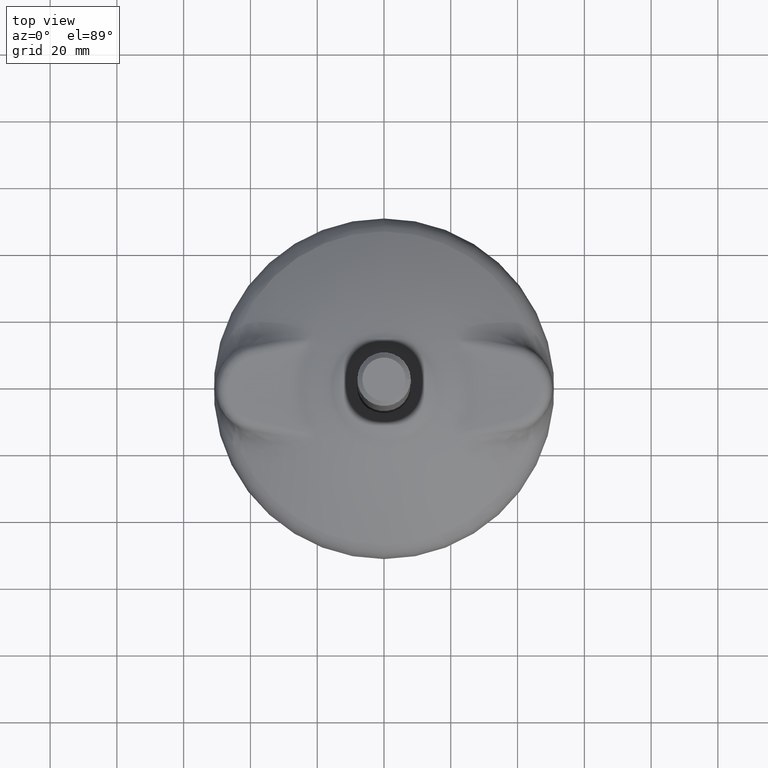
[diagram: clean part render]
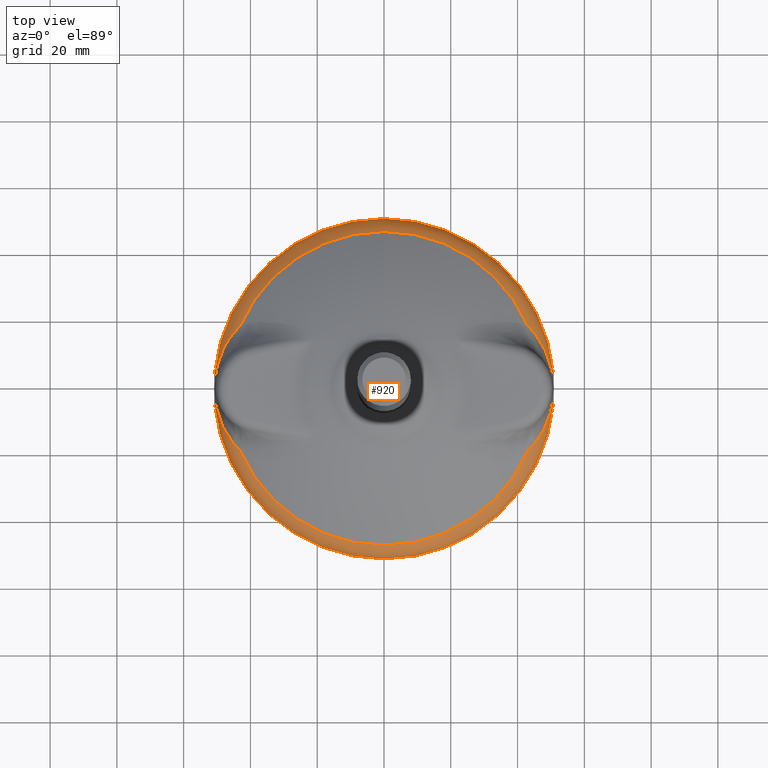
[diagram: same view with one face highlighted and labeled with its STEP entity id]
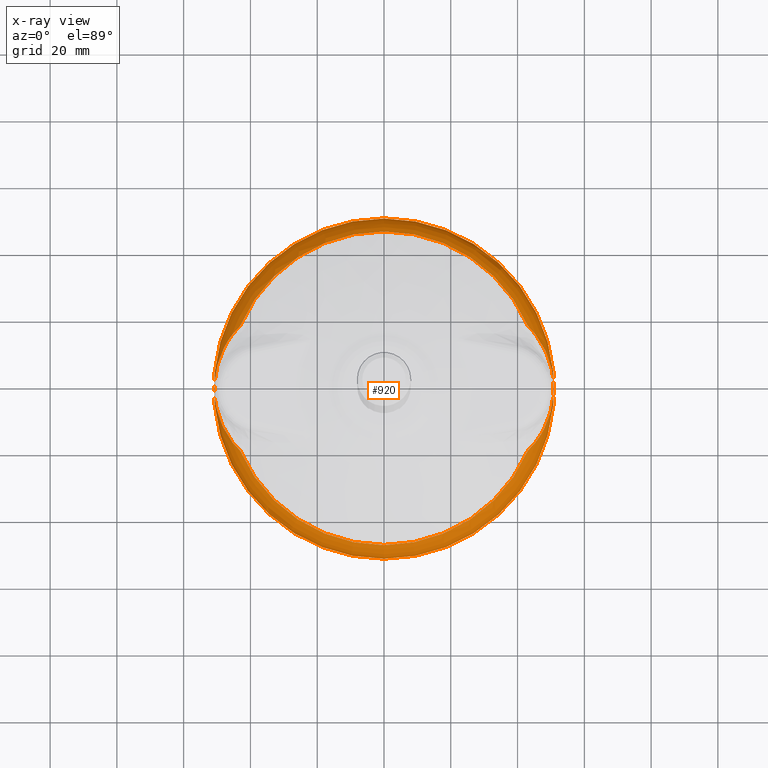
[diagram: x-ray of the same camera — body ghosted, the highlighted face saturated]
A machine part, top view. The second image highlights one B-rep face of the part: STEP entity #920.
The next image is the same camera in x-ray: the body ghosted, the highlighted face saturated — about 0% of this face is hidden behind the body in this view.
In plain terms, the highlighted toroidal blend (fillet) surface has major radius 42.954 mm and minor (blend) radius 8 mm.
Its self-contained STEP definition (entity closure, byte-faithful):
#37=TOROIDAL_SURFACE('',#1018,42.9539756463875,8.);
#59=B_SPLINE_CURVE_WITH_KNOTS('',3,(#2218,#2219,#2220,#2221,#2222,#2223,
#2224,#2225,#2226,#2227,#2228,#2229,#2230,#2231,#2232,#2233,#2234,#2235,
#2236,#2237,#2238,#2239,#2240,#2241,#2242,#2243,#2244,#2245,#2246,#2247,
#2248,#2249,#2250,#2251,#2252,#2253,#2254,#2255,#2256,#2257,#2258,#2259,
#2260,#2261,#2262,#2263,#2264,#2265,#2266,#2267,#2268,#2269,#2270,#2271,
#2272,#2273,#2274,#2275,#2276,#2277,#2278,#2279,#2280,#2281,#2282,#2283,
#2284,#2285,#2286,#2287,#2288,#2289,#2290,#2291,#2292,#2293,#2294,#2295,
#2296,#2297,#2298,#2299,#2300,#2301,#2302,#2303,#2304,#2305,#2306,#2307,
#2308,#2309,#2310,#2311,#2312,#2313,#2314,#2315,#2316,#2317,#2318,#2319,
#2320,#2321,#2322,#2323,#2324,#2325,#2326,#2327,#2328,#2329),
 .UNSPECIFIED.,.F.,.F.,(4,3,3,3,3,3,3,3,3,3,3,3,3,3,3,3,3,3,3,3,3,3,3,3,
3,3,3,3,3,3,3,3,3,3,3,3,3,4),(0.,0.018222802537615,0.0367503347024783,0.0558525532941425,
0.0625,0.0687576017251877,0.0945705334077094,0.102101619982043,0.125,0.134842332414032,
0.1597757440035,0.185974091750454,0.1875,0.198937669194426,0.236816819499432,
0.249999999999999,0.262062297847113,0.310398075632263,0.324602916335422,
0.374999999999999,0.386787666647561,0.437499999999999,0.448790401114532,
0.479746953367728,0.499999999999999,0.510646529469897,0.582979699784663,
0.633748616733842,0.706626075126714,0.75,0.756430156037369,0.8125,0.817755172613899,
0.848401071251382,0.875,0.878950178210174,0.959672150929535,1.),
 .UNSPECIFIED.);
#60=B_SPLINE_CURVE_WITH_KNOTS('',3,(#2331,#2332,#2333,#2334,#2335,#2336,
#2337,#2338,#2339,#2340,#2341,#2342,#2343),.UNSPECIFIED.,.F.,.F.,(4,3,3,
3,4),(0.,0.277875799666637,0.553106511569451,0.823726431966411,1.),
 .UNSPECIFIED.);
#61=B_SPLINE_CURVE_WITH_KNOTS('',3,(#2354,#2355,#2356,#2357,#2358,#2359,
#2360,#2361,#2362,#2363,#2364,#2365,#2366),.UNSPECIFIED.,.F.,.F.,(4,3,3,
3,4),(0.,0.271047231019559,0.545065131911834,0.823187332568414,1.),
 .UNSPECIFIED.);
#62=B_SPLINE_CURVE_WITH_KNOTS('',3,(#2368,#2369,#2370,#2371,#2372,#2373,
#2374,#2375,#2376,#2377,#2378,#2379,#2380,#2381,#2382,#2383,#2384,#2385,
#2386,#2387,#2388,#2389,#2390,#2391,#2392,#2393,#2394,#2395,#2396,#2397,
#2398,#2399,#2400,#2401,#2402,#2403,#2404,#2405,#2406,#2407,#2408,#2409,
#2410,#2411,#2412,#2413,#2414,#2415,#2416,#2417,#2418,#2419,#2420,#2421,
#2422,#2423,#2424,#2425,#2426,#2427,#2428,#2429,#2430,#2431,#2432,#2433,
#2434,#2435,#2436,#2437,#2438,#2439,#2440,#2441,#2442,#2443,#2444,#2445,
#2446,#2447,#2448,#2449,#2450,#2451,#2452,#2453,#2454,#2455,#2456,#2457,
#2458,#2459,#2460,#2461,#2462,#2463,#2464,#2465,#2466,#2467,#2468,#2469,
#2470,#2471,#2472,#2473),.UNSPECIFIED.,.F.,.F.,(4,3,3,3,3,3,3,3,3,3,3,3,
3,3,3,3,3,3,3,3,3,3,3,3,3,3,3,3,3,3,3,3,3,3,3,4),(0.,0.0806810860999628,
0.121104917920797,0.125000000000001,0.151667460845958,0.182330406107497,
0.187500000000001,0.243683798407299,0.250000000000001,0.322424447799351,
0.366313820985453,0.439038724511029,0.48922374077577,0.500000000000001,
0.562500000000001,0.612932018785015,0.625000000000001,0.675168725348555,
0.726112350710725,0.737673724635573,0.750000000000001,0.784530809777315,
0.800687394774762,0.812500000000001,0.838632208422804,0.862939732890658,
0.864764416845607,0.875,0.897564139640933,0.922735946449632,0.931015970200438,
0.9375,0.956502756556265,0.975098243612388,0.993238224314951,1.),
 .UNSPECIFIED.);
#63=B_SPLINE_CURVE_WITH_KNOTS('',3,(#2475,#2476,#2477,#2478,#2479,#2480,
#2481,#2482,#2483,#2484,#2485,#2486,#2487,#2488,#2489,#2490,#2491,#2492,
#2493,#2494,#2495,#2496,#2497,#2498,#2499,#2500,#2501,#2502,#2503,#2504,
#2505,#2506,#2507,#2508,#2509,#2510,#2511,#2512,#2513,#2514,#2515,#2516,
#2517,#2518,#2519,#2520,#2521,#2522,#2523,#2524,#2525,#2526,#2527,#2528,
#2529,#2530,#2531,#2532,#2533,#2534,#2535,#2536,#2537,#2538,#2539,#2540,
#2541,#2542,#2543,#2544,#2545,#2546,#2547,#2548,#2549,#2550,#2551,#2552,
#2553,#2554,#2555,#2556,#2557,#2558,#2559,#2560,#2561,#2562,#2563,#2564,
#2565,#2566,#2567,#2568,#2569,#2570,#2571,#2572,#2573,#2574,#2575,#2576,
#2577,#2578,#2579,#2580,#2581,#2582,#2583,#2584,#2585,#2586),
 .UNSPECIFIED.,.F.,.F.,(4,3,3,3,3,3,3,3,3,3,3,3,3,3,3,3,3,3,3,3,3,3,3,3,
3,3,3,3,3,3,3,3,3,3,3,3,3,4),(0.,0.0182228025467867,0.0367503347211714,
0.0558525533225901,0.0625,0.0687576017251878,0.0945705334320472,0.102101619982048,
0.125,0.134842332414048,0.159775744032231,0.185974091823288,0.1875,0.198937669194411,
0.236816819557266,0.250000000000001,0.262062297847087,0.310398075511154,
0.324602916335428,0.375000000000001,0.386787666647563,0.437500000000001,
0.448790401114524,0.479746953367743,0.500000000000001,0.510646529469891,
0.582979699794647,0.633748616733815,0.706626075146599,0.750000000000001,
0.756430156037374,0.812500000000001,0.817755172613906,0.848401071251367,
0.875000000000001,0.878950178210172,0.959672151761753,1.),.UNSPECIFIED.);
#64=B_SPLINE_CURVE_WITH_KNOTS('',3,(#2588,#2589,#2590,#2591,#2592,#2593,
#2594,#2595,#2596,#2597,#2598,#2599,#2600),.UNSPECIFIED.,.F.,.F.,(4,3,3,
3,4),(0.,0.277875799663428,0.55310651156872,0.82372643195857,1.),
 .UNSPECIFIED.);
#65=B_SPLINE_CURVE_WITH_KNOTS('',3,(#2604,#2605,#2606,#2607,#2608,#2609,
#2610,#2611,#2612,#2613,#2614,#2615,#2616),.UNSPECIFIED.,.F.,.F.,(4,3,3,
3,4),(0.,0.271047231022452,0.545065131913572,0.823187332572719,1.),
 .UNSPECIFIED.);
#66=B_SPLINE_CURVE_WITH_KNOTS('',3,(#2617,#2618,#2619,#2620,#2621,#2622,
#2623,#2624,#2625,#2626,#2627,#2628,#2629,#2630,#2631,#2632,#2633,#2634,
#2635,#2636,#2637,#2638,#2639,#2640,#2641,#2642,#2643,#2644,#2645,#2646,
#2647,#2648,#2649,#2650,#2651,#2652,#2653,#2654,#2655,#2656,#2657,#2658,
#2659,#2660,#2661,#2662,#2663,#2664,#2665,#2666,#2667,#2668,#2669,#2670,
#2671,#2672,#2673,#2674,#2675,#2676,#2677,#2678,#2679,#2680,#2681,#2682,
#2683,#2684,#2685,#2686,#2687,#2688,#2689,#2690,#2691,#2692,#2693,#2694,
#2695,#2696,#2697,#2698,#2699,#2700,#2701,#2702,#2703,#2704,#2705,#2706,
#2707,#2708,#2709,#2710,#2711,#2712,#2713,#2714,#2715,#2716,#2717,#2718,
#2719,#2720,#2721,#2722),.UNSPECIFIED.,.F.,.F.,(4,3,3,3,3,3,3,3,3,3,3,3,
3,3,3,3,3,3,3,3,3,3,3,3,3,3,3,3,3,3,3,3,3,3,3,4),(0.,0.080681086626353,
0.121104917920788,0.125,0.151667460845902,0.182330406107491,0.1875,0.243683798407294,
0.25,0.322424447801602,0.366313820985555,0.439038724524295,0.489223740775748,
0.5,0.5625,0.612932018785009,0.625000000000001,0.675168725348559,0.726112350690797,
0.737673724635557,0.75,0.784530809746806,0.800687394774753,0.8125,0.838632208422806,
0.862939732887436,0.864764416845613,0.875,0.897564139640971,0.922735946437646,
0.93101597020044,0.9375,0.956502756555314,0.975098243609896,0.993238224310252,
1.),.UNSPECIFIED.);
#155=FACE_OUTER_BOUND('',#222,.T.);
#222=EDGE_LOOP('',(#598,#599,#600,#601,#602,#603,#604,#605,#606,#607,#608,
#609,#610,#611,#612));
#290=CIRCLE('',#1019,46.9837143607323);
#291=CIRCLE('',#1020,8.);
#292=CIRCLE('',#1021,50.9491029525027);
#293=CIRCLE('',#1022,50.9491029525027);
#294=CIRCLE('',#1023,46.9837143607323);
#295=CIRCLE('',#1024,46.9837143607323);
#372=VERTEX_POINT('',#2216);
#373=VERTEX_POINT('',#2217);
#374=VERTEX_POINT('',#2330);
#375=VERTEX_POINT('',#2344);
#376=VERTEX_POINT('',#2346);
#377=VERTEX_POINT('',#2348);
#378=VERTEX_POINT('',#2351);
#379=VERTEX_POINT('',#2353);
#380=VERTEX_POINT('',#2367);
#381=VERTEX_POINT('',#2474);
#382=VERTEX_POINT('',#2587);
#383=VERTEX_POINT('',#2601);
#384=VERTEX_POINT('',#2603);
#459=EDGE_CURVE('',#372,#373,#59,.T.);
#460=EDGE_CURVE('',#373,#374,#60,.T.);
#461=EDGE_CURVE('',#375,#374,#290,.T.);
#462=EDGE_CURVE('',#375,#376,#291,.T.);
#463=EDGE_CURVE('',#376,#377,#292,.T.);
#464=EDGE_CURVE('',#377,#376,#293,.T.);
#465=EDGE_CURVE('',#378,#375,#294,.T.);
#466=EDGE_CURVE('',#378,#379,#61,.T.);
#467=EDGE_CURVE('',#379,#380,#62,.T.);
#468=EDGE_CURVE('',#380,#381,#63,.T.);
#469=EDGE_CURVE('',#381,#382,#64,.T.);
#470=EDGE_CURVE('',#383,#382,#295,.T.);
#471=EDGE_CURVE('',#383,#384,#65,.T.);
#472=EDGE_CURVE('',#384,#372,#66,.T.);
#598=ORIENTED_EDGE('',*,*,#459,.T.);
#599=ORIENTED_EDGE('',*,*,#460,.T.);
#600=ORIENTED_EDGE('',*,*,#461,.F.);
#601=ORIENTED_EDGE('',*,*,#462,.T.);
#602=ORIENTED_EDGE('',*,*,#463,.T.);
#603=ORIENTED_EDGE('',*,*,#464,.T.);
#604=ORIENTED_EDGE('',*,*,#462,.F.);
#605=ORIENTED_EDGE('',*,*,#465,.F.);
#606=ORIENTED_EDGE('',*,*,#466,.T.);
#607=ORIENTED_EDGE('',*,*,#467,.T.);
#608=ORIENTED_EDGE('',*,*,#468,.T.);
#609=ORIENTED_EDGE('',*,*,#469,.T.);
#610=ORIENTED_EDGE('',*,*,#470,.F.);
#611=ORIENTED_EDGE('',*,*,#471,.T.);
#612=ORIENTED_EDGE('',*,*,#472,.T.);
#920=ADVANCED_FACE('',(#155),#37,.T.);
#1018=AXIS2_PLACEMENT_3D('',#2215,#1162,#1163);
#1019=AXIS2_PLACEMENT_3D('',#2345,#1164,#1165);
#1020=AXIS2_PLACEMENT_3D('',#2347,#1166,#1167);
#1021=AXIS2_PLACEMENT_3D('',#2349,#1168,#1169);
#1022=AXIS2_PLACEMENT_3D('',#2350,#1170,#1171);
#1023=AXIS2_PLACEMENT_3D('',#2352,#1172,#1173);
#1024=AXIS2_PLACEMENT_3D('',#2602,#1174,#1175);
#1162=DIRECTION('center_axis',(0.,1.171453E-15,1.));
#1163=DIRECTION('ref_axis',(0.,-1.,1.17223431473434E-15));
#1164=DIRECTION('center_axis',(0.,1.171453E-15,1.));
#1165=DIRECTION('ref_axis',(0.,-1.,1.171453E-15));
#1166=DIRECTION('center_axis',(-1.,-1.22464679914735E-16,1.43461616680156E-31));
#1167=DIRECTION('ref_axis',(-1.22464679914735E-16,1.,-1.17114487763886E-15));
#1168=DIRECTION('center_axis',(0.,1.171453E-15,1.));
#1169=DIRECTION('ref_axis',(0.,-1.,1.171453E-15));
#1170=DIRECTION('center_axis',(0.,1.171453E-15,1.));
#1171=DIRECTION('ref_axis',(0.,-1.,1.171453E-15));
#1172=DIRECTION('center_axis',(0.,1.171453E-15,1.));
#1173=DIRECTION('ref_axis',(0.,-1.,1.171453E-15));
#1174=DIRECTION('center_axis',(0.,1.171453E-15,1.));
#1175=DIRECTION('ref_axis',(0.,-1.,1.171453E-15));
#2215=CARTESIAN_POINT('Origin',(0.,1.581797E-15,1.35028559827396));
#2216=CARTESIAN_POINT('',(-50.8753258163308,2.803829E-13,2.4693081561962));
#2217=CARTESIAN_POINT('',(-45.3902886219601,16.1682992003729,7.40400009036721));
#2218=CARTESIAN_POINT('Ctrl Pts',(-50.8753258163309,2.79212417075847E-13,
2.46930815619604));
#2219=CARTESIAN_POINT('Ctrl Pts',(-50.8753258162163,0.110607063480051,2.46930815700715));
#2220=CARTESIAN_POINT('Ctrl Pts',(-50.87457932247,0.22085541299961,2.47215559616056));
#2221=CARTESIAN_POINT('Ctrl Pts',(-50.8730941625265,0.330752815448566,2.47764053878972));
#2222=CARTESIAN_POINT('Ctrl Pts',(-50.8715841670926,0.4424879700443,2.48321720301436));
#2223=CARTESIAN_POINT('Ctrl Pts',(-50.8693105987866,0.553860409802232,2.49152017495504));
#2224=CARTESIAN_POINT('Ctrl Pts',(-50.8662903397049,0.664900840769425,2.50227986785055));
#2225=CARTESIAN_POINT('Ctrl Pts',(-50.8631763983192,0.779385520432836,2.51337330457166));
#2226=CARTESIAN_POINT('Ctrl Pts',(-50.8592687186123,0.893517328943798,2.52707811978757));
#2227=CARTESIAN_POINT('Ctrl Pts',(-50.8545949823728,1.0073528322612,2.54304904741494));
#2228=CARTESIAN_POINT('Ctrl Pts',(-50.8529685528343,1.04696684033601,2.54860682541525));
#2229=CARTESIAN_POINT('Ctrl Pts',(-50.8512494341136,1.08654516004333,2.55443860618742));
#2230=CARTESIAN_POINT('Ctrl Pts',(-50.8494390430488,1.12609077373146,2.56052853637063));
#2231=CARTESIAN_POINT('Ctrl Pts',(-50.8477348238573,1.16331720237216,2.5662613175883));
#2232=CARTESIAN_POINT('Ctrl Pts',(-50.8459504829558,1.2004990694823,2.5722201905387));
#2233=CARTESIAN_POINT('Ctrl Pts',(-50.8440871878396,1.23764505613852,2.57839190145265));
#2234=CARTESIAN_POINT('Ctrl Pts',(-50.8364009988412,1.39087417776469,2.60385052908387));
#2235=CARTESIAN_POINT('Ctrl Pts',(-50.8273476532781,1.54360911913719,2.63290110775226));
#2236=CARTESIAN_POINT('Ctrl Pts',(-50.8169539850645,1.69610558866171,2.66472881523597));
#2237=CARTESIAN_POINT('Ctrl Pts',(-50.8139215664263,1.74059740107552,2.67401475080774));
#2238=CARTESIAN_POINT('Ctrl Pts',(-50.8107750285907,1.78506891545836,2.68353675667348));
#2239=CARTESIAN_POINT('Ctrl Pts',(-50.8075149736743,1.8295264970545,2.69327371484963));
#2240=CARTESIAN_POINT('Ctrl Pts',(-50.7976027285262,1.96470043085801,2.72287908006961));
#2241=CARTESIAN_POINT('Ctrl Pts',(-50.7867017782433,2.09896831495645,2.75429451485324));
#2242=CARTESIAN_POINT('Ctrl Pts',(-50.7748078058765,2.23281726533295,2.78716920398462));
#2243=CARTESIAN_POINT('Ctrl Pts',(-50.7696954603889,2.29034910216341,2.8012996192448));
#2244=CARTESIAN_POINT('Ctrl Pts',(-50.7644013762381,2.34777699644241,2.81569595633637));
#2245=CARTESIAN_POINT('Ctrl Pts',(-50.7589276582753,2.40512148608375,2.83032224755346));
#2246=CARTESIAN_POINT('Ctrl Pts',(-50.7450611826117,2.55039129637558,2.86737477977876));
#2247=CARTESIAN_POINT('Ctrl Pts',(-50.7300441234678,2.69515702942168,2.90587191649146));
#2248=CARTESIAN_POINT('Ctrl Pts',(-50.7138852525056,2.83947272023835,2.94550660831346));
#2249=CARTESIAN_POINT('Ctrl Pts',(-50.6969066004207,2.99110991757055,2.98715207008551));
#2250=CARTESIAN_POINT('Ctrl Pts',(-50.6786671885925,3.1422504986276,3.03005322638088));
#2251=CARTESIAN_POINT('Ctrl Pts',(-50.6591939994391,3.29299673133636,3.07381677369676));
#2252=CARTESIAN_POINT('Ctrl Pts',(-50.6580597943259,3.3017768621408,3.07636575726334));
#2253=CARTESIAN_POINT('Ctrl Pts',(-50.6569214086251,3.31055566505588,3.07891765710393));
#2254=CARTESIAN_POINT('Ctrl Pts',(-50.6557788494881,3.3193331638458,3.08147239216252));
#2255=CARTESIAN_POINT('Ctrl Pts',(-50.647214629819,3.38512619402532,3.10062178367302));
#2256=CARTESIAN_POINT('Ctrl Pts',(-50.6384154546783,3.45083360254808,3.11993621156064));
#2257=CARTESIAN_POINT('Ctrl Pts',(-50.6293823112034,3.51647867762683,3.13938712054669));
#2258=CARTESIAN_POINT('Ctrl Pts',(-50.5994664434166,3.73388133400922,3.2038044325468));
#2259=CARTESIAN_POINT('Ctrl Pts',(-50.5669425548929,3.95069357194471,3.26984880011236));
#2260=CARTESIAN_POINT('Ctrl Pts',(-50.5318723842772,4.16675564378585,3.33693199739761));
#2261=CARTESIAN_POINT('Ctrl Pts',(-50.5196668203802,4.24195229601993,3.36027913932781));
#2262=CARTESIAN_POINT('Ctrl Pts',(-50.5071530309862,4.31705827665232,3.3837517316342));
#2263=CARTESIAN_POINT('Ctrl Pts',(-50.4943342551675,4.39206747523708,3.40732381705424));
#2264=CARTESIAN_POINT('Ctrl Pts',(-50.4826053789715,4.46069911496649,3.42889171678843));
#2265=CARTESIAN_POINT('Ctrl Pts',(-50.47062079107,4.52924838336984,3.4505448057103));
#2266=CARTESIAN_POINT('Ctrl Pts',(-50.4583827672784,4.59771072218007,3.47226429089651));
#2267=CARTESIAN_POINT('Ctrl Pts',(-50.4093428243075,4.87205151838042,3.55929813990896));
#2268=CARTESIAN_POINT('Ctrl Pts',(-50.356234303129,5.14501326697966,3.64744851954726));
#2269=CARTESIAN_POINT('Ctrl Pts',(-50.29905285438,5.41681574715197,3.73625815069382));
#2270=CARTESIAN_POINT('Ctrl Pts',(-50.2822484621084,5.49669262325671,3.76235738238407));
#2271=CARTESIAN_POINT('Ctrl Pts',(-50.2650925266438,5.57646962369032,3.78851342033886));
#2272=CARTESIAN_POINT('Ctrl Pts',(-50.2475854715019,5.65615289532333,3.81471436393785));
#2273=CARTESIAN_POINT('Ctrl Pts',(-50.1854725241521,5.93885965642506,3.90767219248679));
#2274=CARTESIAN_POINT('Ctrl Pts',(-50.1189358735009,6.22036604798966,4.0012109572267));
#2275=CARTESIAN_POINT('Ctrl Pts',(-50.0479758520503,6.50068655446503,4.09501065013845));
#2276=CARTESIAN_POINT('Ctrl Pts',(-50.0313786004369,6.56625234606519,4.11695000518221));
#2277=CARTESIAN_POINT('Ctrl Pts',(-50.0145389268475,6.63175499554447,4.1389046542049));
#2278=CARTESIAN_POINT('Ctrl Pts',(-49.9974566048136,6.69719662760427,4.16087105638765));
#2279=CARTESIAN_POINT('Ctrl Pts',(-49.9239658593319,6.97873647423969,4.25537385692925));
#2280=CARTESIAN_POINT('Ctrl Pts',(-49.8459820948975,7.25913842180201,4.35010060300977));
#2281=CARTESIAN_POINT('Ctrl Pts',(-49.7634639917238,7.53844802075987,4.4448677797871));
#2282=CARTESIAN_POINT('Ctrl Pts',(-49.745092474926,7.60063244807576,4.46596638376715));
#2283=CARTESIAN_POINT('Ctrl Pts',(-49.7264970974871,7.66275971469967,4.48706620930678));
#2284=CARTESIAN_POINT('Ctrl Pts',(-49.7076756537454,7.72483657135678,4.50816740345873));
#2285=CARTESIAN_POINT('Ctrl Pts',(-49.6560701349726,7.89504181360864,4.56602364902019));
#2286=CARTESIAN_POINT('Ctrl Pts',(-49.6027333488479,8.06495285647541,4.623922229906));
#2287=CARTESIAN_POINT('Ctrl Pts',(-49.5478334921058,8.23402996434397,4.68164757635487));
#2288=CARTESIAN_POINT('Ctrl Pts',(-49.5119157532824,8.34464714555019,4.71941386647434));
#2289=CARTESIAN_POINT('Ctrl Pts',(-49.4753125695062,8.45496369149038,4.75712515107837));
#2290=CARTESIAN_POINT('Ctrl Pts',(-49.4380130570635,8.5650140996239,4.79478591911235));
#2291=CARTESIAN_POINT('Ctrl Pts',(-49.4184056189509,8.62286489780953,4.81458326042168));
#2292=CARTESIAN_POINT('Ctrl Pts',(-49.398607996671,8.6806354247502,4.83436436223574));
#2293=CARTESIAN_POINT('Ctrl Pts',(-49.3786201627011,8.73832627685857,4.85412836838103));
#2294=CARTESIAN_POINT('Ctrl Pts',(-49.2428216000936,9.13028144337157,4.98840623110155));
#2295=CARTESIAN_POINT('Ctrl Pts',(-49.0982628381649,9.51858448574543,5.12188513199418));
#2296=CARTESIAN_POINT('Ctrl Pts',(-48.9448513540605,9.90327954481626,5.25436333466636));
#2297=CARTESIAN_POINT('Ctrl Pts',(-48.8371755137557,10.1732877778266,5.3473466069296));
#2298=CARTESIAN_POINT('Ctrl Pts',(-48.7251394282304,10.441519291842,5.43983696378242));
#2299=CARTESIAN_POINT('Ctrl Pts',(-48.6087238645811,10.7079977451092,5.53176588523455));
#2300=CARTESIAN_POINT('Ctrl Pts',(-48.4416123541145,11.0905206263835,5.66372745839428));
#2301=CARTESIAN_POINT('Ctrl Pts',(-48.2654786363546,11.46941895834,5.79454016392908));
#2302=CARTESIAN_POINT('Ctrl Pts',(-48.0801068568672,11.8446349802538,5.92403085447858));
#2303=CARTESIAN_POINT('Ctrl Pts',(-47.9697805390398,12.0679494577979,6.00109884789578));
#2304=CARTESIAN_POINT('Ctrl Pts',(-47.8561827805757,12.2899600408784,6.07769867438771));
#2305=CARTESIAN_POINT('Ctrl Pts',(-47.739275999132,12.5106582124244,6.15379496881591));
#2306=CARTESIAN_POINT('Ctrl Pts',(-47.7219446451283,12.5433765722304,6.16507619477064));
#2307=CARTESIAN_POINT('Ctrl Pts',(-47.7045404932922,12.5760661961864,6.17634642851798));
#2308=CARTESIAN_POINT('Ctrl Pts',(-47.6870634298822,12.608727065066,6.18760555552343));
#2309=CARTESIAN_POINT('Ctrl Pts',(-47.5346664720745,12.8935241696959,6.28578318771182));
#2310=CARTESIAN_POINT('Ctrl Pts',(-47.3767111081999,13.1761275104673,6.38311585242439));
#2311=CARTESIAN_POINT('Ctrl Pts',(-47.213048375008,13.4564975928413,6.47952078055328));
#2312=CARTESIAN_POINT('Ctrl Pts',(-47.197709008022,13.4827754112641,6.48855637798575));
#2313=CARTESIAN_POINT('Ctrl Pts',(-47.1823186149607,13.509035156747,6.49758436435568));
#2314=CARTESIAN_POINT('Ctrl Pts',(-47.1668764291442,13.5352778603835,6.50660503841123));
#2315=CARTESIAN_POINT('Ctrl Pts',(-47.076824266058,13.6883139820689,6.55920971632742));
#2316=CARTESIAN_POINT('Ctrl Pts',(-46.9849781841483,13.8408125138142,6.61157990775505));
#2317=CARTESIAN_POINT('Ctrl Pts',(-46.8917229840399,13.9921048239597,6.66347491636624));
#2318=CARTESIAN_POINT('Ctrl Pts',(-46.8107826777215,14.1234181009949,6.70851688602053));
#2319=CARTESIAN_POINT('Ctrl Pts',(-46.7286905631571,14.253978587648,6.75325452336524));
#2320=CARTESIAN_POINT('Ctrl Pts',(-46.6453537741147,14.3839144136904,6.79772426580648));
#2321=CARTESIAN_POINT('Ctrl Pts',(-46.6329775174883,14.4032110430248,6.80432841927685));
#2322=CARTESIAN_POINT('Ctrl Pts',(-46.6205749859043,14.4224920252269,6.810926023635));
#2323=CARTESIAN_POINT('Ctrl Pts',(-46.6081461502561,14.4417573520859,6.81751705161709));
#2324=CARTESIAN_POINT('Ctrl Pts',(-46.354162638944,14.8354447014663,6.95220484357356));
#2325=CARTESIAN_POINT('Ctrl Pts',(-46.0892257821214,15.2226144602278,7.08416014437246));
#2326=CARTESIAN_POINT('Ctrl Pts',(-45.8129343164146,15.6030877488243,7.21308263517687));
#2327=CARTESIAN_POINT('Ctrl Pts',(-45.6749020043547,15.793168204504,7.27749095642819));
#2328=CARTESIAN_POINT('Ctrl Pts',(-45.5340360468087,15.9815780203688,7.34114240306936));
#2329=CARTESIAN_POINT('Ctrl Pts',(-45.3902886219601,16.1682992003729,7.40400009036722));
#2330=CARTESIAN_POINT('',(-43.1479021368188,18.5937612204306,8.26123386129241));
#2331=CARTESIAN_POINT('Ctrl Pts',(-45.3902886219601,16.1682992003729,7.40400009036721));
#2332=CARTESIAN_POINT('Ctrl Pts',(-45.2032649082044,16.4112342550911,7.48578157708889));
#2333=CARTESIAN_POINT('Ctrl Pts',(-45.0106625578263,16.6490105442405,7.5674382432531));
#2334=CARTESIAN_POINT('Ctrl Pts',(-44.8123375053262,16.8817028195825,7.64854579554296));
#2335=CARTESIAN_POINT('Ctrl Pts',(-44.6159003004554,17.1121801071818,7.72888128853737));
#2336=CARTESIAN_POINT('Ctrl Pts',(-44.4138482970492,17.3376695527692,7.80867811655563));
#2337=CARTESIAN_POINT('Ctrl Pts',(-44.2060500195009,17.5582273957264,7.8874768241038));
#2338=CARTESIAN_POINT('Ctrl Pts',(-44.0017328742957,17.7750903522306,7.96495545945174));
#2339=CARTESIAN_POINT('Ctrl Pts',(-43.7918598841924,17.9871853429446,8.04146908180662));
#2340=CARTESIAN_POINT('Ctrl Pts',(-43.5763217899797,18.1945526504998,8.11653528801766));
#2341=CARTESIAN_POINT('Ctrl Pts',(-43.4359268447063,18.3296253943786,8.16543112683158));
#2342=CARTESIAN_POINT('Ctrl Pts',(-43.2931286299311,18.4626920008113,8.21371192422786));
#2343=CARTESIAN_POINT('Ctrl Pts',(-43.1479021368187,18.5937612204306,8.26123386129196));
#2344=CARTESIAN_POINT('',(-5.75384554039243E-15,46.9837143607323,8.26123386129238));
#2345=CARTESIAN_POINT('Origin',(0.,1.93553E-14,8.26123386129243));
#2346=CARTESIAN_POINT('',(-6.23946558502113E-15,50.9491029525027,1.62946181325611));
#2347=CARTESIAN_POINT('Origin',(-5.26034487860018E-15,42.9539756463875,
1.35028559827391));
#2348=CARTESIAN_POINT('',(0.,-50.9491029525027,1.62946181325623));
#2349=CARTESIAN_POINT('Origin',(0.,3.817677E-15,1.62946181325617));
#2350=CARTESIAN_POINT('Origin',(0.,3.817677E-15,1.62946181325617));
#2351=CARTESIAN_POINT('',(43.147902136819,18.5937612204301,8.26123386129241));
#2352=CARTESIAN_POINT('Origin',(0.,1.93553E-14,8.26123386129243));
#2353=CARTESIAN_POINT('',(45.3902886219603,16.1682992003723,7.4040000903672));
#2354=CARTESIAN_POINT('Ctrl Pts',(43.1479021368189,18.59376122043,8.26123386129195));
#2355=CARTESIAN_POINT('Ctrl Pts',(43.3712098015352,18.3922225016874,8.1881617064726));
#2356=CARTESIAN_POINT('Ctrl Pts',(43.5887749171552,18.1859616845277,8.11329755737715));
#2357=CARTESIAN_POINT('Ctrl Pts',(43.8006927752545,17.9749452717999,8.03715616061235));
#2358=CARTESIAN_POINT('Ctrl Pts',(44.0149332469963,17.761616125245,7.96018025632433));
#2359=CARTESIAN_POINT('Ctrl Pts',(44.2234025158967,17.5434268078087,7.88189899279334));
#2360=CARTESIAN_POINT('Ctrl Pts',(44.426220713816,17.3203309768616,7.80279629172627));
#2361=CARTESIAN_POINT('Ctrl Pts',(44.6320767668506,17.0938935679979,7.72250877318456));
#2362=CARTESIAN_POINT('Ctrl Pts',(44.8321117297822,16.8624017703644,7.64137504987025));
#2363=CARTESIAN_POINT('Ctrl Pts',(45.0264653884418,16.6257916935631,7.55985147076806));
#2364=CARTESIAN_POINT('Ctrl Pts',(45.1500232659919,16.4753698332381,7.5080238876208));
#2365=CARTESIAN_POINT('Ctrl Pts',(45.2712852336056,16.3228790345604,7.45603773751435));
#2366=CARTESIAN_POINT('Ctrl Pts',(45.3902886219603,16.1682992003723,7.40400009036722));
#2367=CARTESIAN_POINT('',(50.8753258163309,-5.135288E-14,2.46930815619605));
#2368=CARTESIAN_POINT('Ctrl Pts',(45.3902886219603,16.1682992003723,7.4040000903672));
#2369=CARTESIAN_POINT('Ctrl Pts',(45.6782656786934,15.7942304759805,7.27807385690588));
#2370=CARTESIAN_POINT('Ctrl Pts',(45.9546680718156,15.4133931075555,7.14896543257678));
#2371=CARTESIAN_POINT('Ctrl Pts',(46.2198883889244,15.0259439163735,7.01697321463073));
#2372=CARTESIAN_POINT('Ctrl Pts',(46.3527723399534,14.8318193488874,6.9508408473334));
#2373=CARTESIAN_POINT('Ctrl Pts',(46.4828496013306,14.6360357087931,6.88398465192394));
#2374=CARTESIAN_POINT('Ctrl Pts',(46.6101717342908,14.4386170945499,6.81644269978518));
#2375=CARTESIAN_POINT('Ctrl Pts',(46.6224399962551,14.4195946102429,6.80993462186381));
#2376=CARTESIAN_POINT('Ctrl Pts',(46.6346826022783,14.4005568926205,6.80342014405005));
#2377=CARTESIAN_POINT('Ctrl Pts',(46.6468995805474,14.381503949665,6.79689929261033));
#2378=CARTESIAN_POINT('Ctrl Pts',(46.730542436596,14.2510590450556,6.7522546492075));
#2379=CARTESIAN_POINT('Ctrl Pts',(46.8129315194232,14.1199839015947,6.70733982983232));
#2380=CARTESIAN_POINT('Ctrl Pts',(46.8941548704487,13.9881586698541,6.66212132632116));
#2381=CARTESIAN_POINT('Ctrl Pts',(46.9875476077941,13.8365825641161,6.6101279061009));
#2382=CARTESIAN_POINT('Ctrl Pts',(47.079529253068,13.683791767217,6.55765628453577));
#2383=CARTESIAN_POINT('Ctrl Pts',(47.1697363674864,13.5304164267166,6.50493395443748));
#2384=CARTESIAN_POINT('Ctrl Pts',(47.184944761324,13.5045582380544,6.49604527680557));
#2385=CARTESIAN_POINT('Ctrl Pts',(47.2001014492015,13.4786859589272,6.48715034792935));
#2386=CARTESIAN_POINT('Ctrl Pts',(47.2152071530494,13.4527986783694,6.47824890844709));
#2387=CARTESIAN_POINT('Ctrl Pts',(47.3793778475833,13.1714524483917,6.38150694151399));
#2388=CARTESIAN_POINT('Ctrl Pts',(47.5377276770702,12.8879869824101,6.28387565502356));
#2389=CARTESIAN_POINT('Ctrl Pts',(47.69042404649,12.6024447951482,6.18543983688551));
#2390=CARTESIAN_POINT('Ctrl Pts',(47.7075902239125,12.570344046016,6.1743736489643));
#2391=CARTESIAN_POINT('Ctrl Pts',(47.7246851466322,12.5382171346855,6.16329729807213));
#2392=CARTESIAN_POINT('Ctrl Pts',(47.7417089405577,12.5060640881292,6.15221089543004));
#2393=CARTESIAN_POINT('Ctrl Pts',(47.9369115249605,12.1373825937647,6.02508914707375));
#2394=CARTESIAN_POINT('Ctrl Pts',(48.1227671149964,11.7652530025143,5.89663698632211));
#2395=CARTESIAN_POINT('Ctrl Pts',(48.2994936404215,11.3897225715613,5.76702178661228));
#2396=CARTESIAN_POINT('Ctrl Pts',(48.4065902999329,11.1621503120876,5.68847469314439));
#2397=CARTESIAN_POINT('Ctrl Pts',(48.5103353969585,10.9333294751464,5.60950062002869));
#2398=CARTESIAN_POINT('Ctrl Pts',(48.610785962323,10.703274031424,5.53013790383534));
#2399=CARTESIAN_POINT('Ctrl Pts',(48.7772330346985,10.3220710491142,5.39863349947268));
#2400=CARTESIAN_POINT('Ctrl Pts',(48.9346269593494,9.9374876194546,5.2660536476363));
#2401=CARTESIAN_POINT('Ctrl Pts',(49.0830598140507,9.54947052388027,5.13260200184905));
#2402=CARTESIAN_POINT('Ctrl Pts',(49.185488347693,9.28171294279876,5.04051149791274));
#2403=CARTESIAN_POINT('Ctrl Pts',(49.2836506684443,9.01232074625034,4.94800596011341));
#2404=CARTESIAN_POINT('Ctrl Pts',(49.3775894747659,8.74128377761508,4.85515334694099));
#2405=CARTESIAN_POINT('Ctrl Pts',(49.3977610120789,8.68308384363568,4.835215048547));
#2406=CARTESIAN_POINT('Ctrl Pts',(49.4177378438479,8.62480889779597,4.81526018386286));
#2407=CARTESIAN_POINT('Ctrl Pts',(49.4375198684076,8.56645783308837,4.79528994778484));
#2408=CARTESIAN_POINT('Ctrl Pts',(49.5522513823079,8.22803413073117,4.67946684730952));
#2409=CARTESIAN_POINT('Ctrl Pts',(49.6604169133795,7.88704253711166,4.56315066818992));
#2410=CARTESIAN_POINT('Ctrl Pts',(49.7620058936505,7.54341053233032,4.44655342906142));
#2411=CARTESIAN_POINT('Ctrl Pts',(49.8439792914325,7.2661296408061,4.35246968259728));
#2412=CARTESIAN_POINT('Ctrl Pts',(49.9216338463202,6.9872536875823,4.25825504932372));
#2413=CARTESIAN_POINT('Ctrl Pts',(49.99506431886,6.70635183457992,4.16394645539571));
#2414=CARTESIAN_POINT('Ctrl Pts',(50.0126356472456,6.63913425402384,4.14137915852055));
#2415=CARTESIAN_POINT('Ctrl Pts',(50.0299452920541,6.57187176905686,4.11883136498067));
#2416=CARTESIAN_POINT('Ctrl Pts',(50.0469945088809,6.50456081578067,4.09630655271259));
#2417=CARTESIAN_POINT('Ctrl Pts',(50.1178711087988,6.22473731691171,4.00266693726457));
#2418=CARTESIAN_POINT('Ctrl Pts',(50.1842980912264,5.94389531609982,3.90934151928844));
#2419=CARTESIAN_POINT('Ctrl Pts',(50.246236607655,5.66228966455679,3.81673185011885));
#2420=CARTESIAN_POINT('Ctrl Pts',(50.3091318188549,5.37633436646209,3.7226917432931));
#2421=CARTESIAN_POINT('Ctrl Pts',(50.3674304742042,5.08948978214681,3.62933616260856));
#2422=CARTESIAN_POINT('Ctrl Pts',(50.4211585822691,4.80150134403279,3.53719686052852));
#2423=CARTESIAN_POINT('Ctrl Pts',(50.4333518791379,4.73614396132988,3.51628635569207));
#2424=CARTESIAN_POINT('Ctrl Pts',(50.4453099215349,4.67072779308073,3.49543841085186));
#2425=CARTESIAN_POINT('Ctrl Pts',(50.4570332689812,4.60525010335763,3.47465908303914));
#2426=CARTESIAN_POINT('Ctrl Pts',(50.4695322340486,4.53544040435475,3.45250499320758));
#2427=CARTESIAN_POINT('Ctrl Pts',(50.4817646268728,4.46556348354688,3.43042646682503));
#2428=CARTESIAN_POINT('Ctrl Pts',(50.4937302532171,4.39560766462542,3.40843837409745));
#2429=CARTESIAN_POINT('Ctrl Pts',(50.527250741357,4.19963353581728,3.34684096329049));
#2430=CARTESIAN_POINT('Ctrl Pts',(50.5586720732671,4.00309280755024,3.2859514251386));
#2431=CARTESIAN_POINT('Ctrl Pts',(50.5879739245247,3.80587277375512,3.22615655822958));
#2432=CARTESIAN_POINT('Ctrl Pts',(50.6016839375096,3.71359569540802,3.19817919957924));
#2433=CARTESIAN_POINT('Ctrl Pts',(50.6149302887577,3.62117038630822,3.17044109357793));
#2434=CARTESIAN_POINT('Ctrl Pts',(50.6277126314285,3.52858808656156,3.14297959105721));
#2435=CARTESIAN_POINT('Ctrl Pts',(50.6370582182495,3.46089815345225,3.12290159262993));
#2436=CARTESIAN_POINT('Ctrl Pts',(50.6461565593643,3.39313233855182,3.10296427284463));
#2437=CARTESIAN_POINT('Ctrl Pts',(50.6550058674253,3.32526741336237,3.08320003413277));
#2438=CARTESIAN_POINT('Ctrl Pts',(50.6745825787634,3.17513453955234,3.03947697766146));
#2439=CARTESIAN_POINT('Ctrl Pts',(50.6929461871723,3.02454700644136,2.99656199756095));
#2440=CARTESIAN_POINT('Ctrl Pts',(50.7100658830254,2.87339142610479,2.95484629142206));
#2441=CARTESIAN_POINT('Ctrl Pts',(50.7259901944766,2.73279029863645,2.91604338845806));
#2442=CARTESIAN_POINT('Ctrl Pts',(50.7408384290341,2.59169759597404,2.87827818857741));
#2443=CARTESIAN_POINT('Ctrl Pts',(50.7545998360521,2.45005793091032,2.84183520603702));
#2444=CARTESIAN_POINT('Ctrl Pts',(50.7556328585064,2.43942551852428,2.83909955413631));
#2445=CARTESIAN_POINT('Ctrl Pts',(50.7566597629531,2.42879004219565,2.83637133763081));
#2446=CARTESIAN_POINT('Ctrl Pts',(50.7576805478876,2.4181514875467,2.8336506692719));
#2447=CARTESIAN_POINT('Ctrl Pts',(50.7634066513324,2.35847440732881,2.81838905251489));
#2448=CARTESIAN_POINT('Ctrl Pts',(50.7689396241475,2.29869420967078,2.80337056581916));
#2449=CARTESIAN_POINT('Ctrl Pts',(50.774276910645,2.23878529183893,2.78863572429716));
#2450=CARTESIAN_POINT('Ctrl Pts',(50.786042852655,2.106717273114,2.75615305900351));
#2451=CARTESIAN_POINT('Ctrl Pts',(50.7968452468722,1.97420655397383,2.72507773056062));
#2452=CARTESIAN_POINT('Ctrl Pts',(50.8066926160218,1.84070544998879,2.69572785646965));
#2453=CARTESIAN_POINT('Ctrl Pts',(50.8176780148782,1.69177604023797,2.66298610906718));
#2454=CARTESIAN_POINT('Ctrl Pts',(50.8274000359314,1.54252617981,2.63261133023817));
#2455=CARTESIAN_POINT('Ctrl Pts',(50.8358212486972,1.39292940444747,2.6054205979322));
#2456=CARTESIAN_POINT('Ctrl Pts',(50.8385913256424,1.34372098399281,2.59647646805681));
#2457=CARTESIAN_POINT('Ctrl Pts',(50.841220600012,1.29447480214407,2.58787647466091));
#2458=CARTESIAN_POINT('Ctrl Pts',(50.8437075670571,1.24518928670314,2.57964875651675));
#2459=CARTESIAN_POINT('Ctrl Pts',(50.8456550938899,1.20659413765243,2.57320568687894));
#2460=CARTESIAN_POINT('Ctrl Pts',(50.8475174447443,1.16796006602266,2.56699135916656));
#2461=CARTESIAN_POINT('Ctrl Pts',(50.8492933624733,1.12927606952389,2.56102048201844));
#2462=CARTESIAN_POINT('Ctrl Pts',(50.8544980474165,1.01590481880274,2.54352162276263));
#2463=CARTESIAN_POINT('Ctrl Pts',(50.8589518471389,0.902265269068922,2.52814455876549));
#2464=CARTESIAN_POINT('Ctrl Pts',(50.8626243735229,0.788294252272731,2.51524827700706));
#2465=CARTESIAN_POINT('Ctrl Pts',(50.8662181898535,0.67676587683249,2.50262839000273));
#2466=CARTESIAN_POINT('Ctrl Pts',(50.8690638542946,0.564919997618884,2.49238428443648));
#2467=CARTESIAN_POINT('Ctrl Pts',(50.871141177469,0.452717642963231,2.48480810735351));
#2468=CARTESIAN_POINT('Ctrl Pts',(50.8731676155065,0.343263744708621,2.47741751276088));
#2469=CARTESIAN_POINT('Ctrl Pts',(50.8744628974071,0.233470575668096,2.47256583908433));
#2470=CARTESIAN_POINT('Ctrl Pts',(50.8750162731787,0.123322389969373,2.47047964402844));
#2471=CARTESIAN_POINT('Ctrl Pts',(50.8752225469834,0.0822640594219408,2.46970200356485));
#2472=CARTESIAN_POINT('Ctrl Pts',(50.8753258162882,0.0411566113485105,2.46930815649772));
#2473=CARTESIAN_POINT('Ctrl Pts',(50.8753258163308,-4.46461400000024E-14,
2.4693081561962));
#2474=CARTESIAN_POINT('',(45.3902886219601,-16.1682992003728,7.40400009036724));
#2475=CARTESIAN_POINT('Ctrl Pts',(50.8753258163309,-1.57717588988859E-13,
2.46930815619605));
#2476=CARTESIAN_POINT('Ctrl Pts',(50.8753258162156,-0.110607063535567,2.46930815701174));
#2477=CARTESIAN_POINT('Ctrl Pts',(50.8745793224683,-0.220855413110332,2.47215559617029));
#2478=CARTESIAN_POINT('Ctrl Pts',(50.8730941625231,-0.330752815614127,2.47764053880569));
#2479=CARTESIAN_POINT('Ctrl Pts',(50.8715841670876,-0.442487970266803,2.48321720303672));
#2480=CARTESIAN_POINT('Ctrl Pts',(50.8693105987794,-0.553860410081298,2.49152017498498));
#2481=CARTESIAN_POINT('Ctrl Pts',(50.8662903396948,-0.664900841104795,2.50227986788978));
#2482=CARTESIAN_POINT('Ctrl Pts',(50.8631763983061,-0.779385520825883,2.51337330462043));
#2483=CARTESIAN_POINT('Ctrl Pts',(50.8592687185956,-0.893517329394256,2.5270781198477));
#2484=CARTESIAN_POINT('Ctrl Pts',(50.8545949823516,-1.00735283276895,2.54304904748884));
#2485=CARTESIAN_POINT('Ctrl Pts',(50.8529685528192,-1.04696684067394,2.54860682546733));
#2486=CARTESIAN_POINT('Ctrl Pts',(50.8512494341055,-1.08654516021177,2.55443860621533));
#2487=CARTESIAN_POINT('Ctrl Pts',(50.8494390430485,-1.12609077373071,2.56052853637231));
#2488=CARTESIAN_POINT('Ctrl Pts',(50.8477348238571,-1.16331720237144,2.56626131758981));
#2489=CARTESIAN_POINT('Ctrl Pts',(50.8459504829556,-1.20049906948161,2.57222019054012));
#2490=CARTESIAN_POINT('Ctrl Pts',(50.8440871878394,-1.23764505613787,2.57839190145409));
#2491=CARTESIAN_POINT('Ctrl Pts',(50.8364009988337,-1.39087417790862,2.60385052910941));
#2492=CARTESIAN_POINT('Ctrl Pts',(50.8273476532608,-1.5436091194251,2.63290110780807));
#2493=CARTESIAN_POINT('Ctrl Pts',(50.816953985035,-1.69610558909274,2.66472881532691));
#2494=CARTESIAN_POINT('Ctrl Pts',(50.8139215664058,-1.74059740136261,2.67401475087017));
#2495=CARTESIAN_POINT('Ctrl Pts',(50.8107750285801,-1.7850689156016,2.68353675670584));
#2496=CARTESIAN_POINT('Ctrl Pts',(50.8075149736742,-1.82952649705389,2.69327371485059));
#2497=CARTESIAN_POINT('Ctrl Pts',(50.797602728526,-1.96470043085678,2.72287908007077));
#2498=CARTESIAN_POINT('Ctrl Pts',(50.7867017782433,-2.09896831495637,2.75429451485293));
#2499=CARTESIAN_POINT('Ctrl Pts',(50.7748078058765,-2.23281726533296,2.78716920398412));
#2500=CARTESIAN_POINT('Ctrl Pts',(50.769695460389,-2.29034910216355,2.80129961924423));
#2501=CARTESIAN_POINT('Ctrl Pts',(50.7644013762382,-2.34777699644258,2.81569595633586));
#2502=CARTESIAN_POINT('Ctrl Pts',(50.7589276582753,-2.40512148608358,2.83032224755338));
#2503=CARTESIAN_POINT('Ctrl Pts',(50.7450611825956,-2.55039129654163,2.86737477982237));
#2504=CARTESIAN_POINT('Ctrl Pts',(50.7300441234331,-2.69515702975381,2.90587191658121));
#2505=CARTESIAN_POINT('Ctrl Pts',(50.7138852524496,-2.83947272073597,2.94550660845122));
#2506=CARTESIAN_POINT('Ctrl Pts',(50.6969066003334,-2.99110991832269,2.98715207029587));
#2507=CARTESIAN_POINT('Ctrl Pts',(50.6786671884698,-3.14225049963308,3.03005322666727));
#2508=CARTESIAN_POINT('Ctrl Pts',(50.6591939992768,-3.29299673259362,3.07381677406136));
#2509=CARTESIAN_POINT('Ctrl Pts',(50.6580597942173,-3.30177686297885,3.07636575750654));
#2510=CARTESIAN_POINT('Ctrl Pts',(50.6569214085707,-3.31055566547485,3.07891765722544));
#2511=CARTESIAN_POINT('Ctrl Pts',(50.6557788494882,-3.3193331638458,3.08147239216208));
#2512=CARTESIAN_POINT('Ctrl Pts',(50.6472146298191,-3.38512619402529,3.10062178367248));
#2513=CARTESIAN_POINT('Ctrl Pts',(50.6384154546784,-3.45083360254823,3.11993621155986));
#2514=CARTESIAN_POINT('Ctrl Pts',(50.6293823112037,-3.51647867762732,3.13938712054556));
#2515=CARTESIAN_POINT('Ctrl Pts',(50.5994664433713,-3.73388133434313,3.20380443264298));
#2516=CARTESIAN_POINT('Ctrl Pts',(50.5669425547937,-3.95069357260759,3.26984880031299));
#2517=CARTESIAN_POINT('Ctrl Pts',(50.5318723841167,-4.16675564477566,3.33693199770452));
#2518=CARTESIAN_POINT('Ctrl Pts',(50.5196668202705,-4.24195229667882,3.36027913953364));
#2519=CARTESIAN_POINT('Ctrl Pts',(50.50715303093,-4.3170582769811,3.38375173173767));
#2520=CARTESIAN_POINT('Ctrl Pts',(50.4943342551675,-4.3920674752368,3.40732381705433));
#2521=CARTESIAN_POINT('Ctrl Pts',(50.4826053789715,-4.46069911496603,3.4288917167885));
#2522=CARTESIAN_POINT('Ctrl Pts',(50.47062079107,-4.52924838336948,3.4505448057102));
#2523=CARTESIAN_POINT('Ctrl Pts',(50.4583827672785,-4.59771072218024,3.472264290896));
#2524=CARTESIAN_POINT('Ctrl Pts',(50.4093428244307,-4.87205151769609,3.55929813968896));
#2525=CARTESIAN_POINT('Ctrl Pts',(50.3562343033948,-5.14501326561187,3.64744851910671));
#2526=CARTESIAN_POINT('Ctrl Pts',(50.2990528548094,-5.41681574510798,3.73625815002794));
#2527=CARTESIAN_POINT('Ctrl Pts',(50.2822484624005,-5.49669262189517,3.76235738193988));
#2528=CARTESIAN_POINT('Ctrl Pts',(50.2650925267926,-5.57646962300963,3.78851342011721));
#2529=CARTESIAN_POINT('Ctrl Pts',(50.2475854715016,-5.65615289532229,3.81471436393907));
#2530=CARTESIAN_POINT('Ctrl Pts',(50.1854725241523,-5.93885965642485,3.90767219248615));
#2531=CARTESIAN_POINT('Ctrl Pts',(50.1189358735009,-6.22036604798935,4.00121095722687));
#2532=CARTESIAN_POINT('Ctrl Pts',(50.0479758520503,-6.50068655446459,4.09501065013876));
#2533=CARTESIAN_POINT('Ctrl Pts',(50.0313786004368,-6.56625234606472,4.11695000518255));
#2534=CARTESIAN_POINT('Ctrl Pts',(50.0145389268475,-6.63175499554399,4.13890465420528));
#2535=CARTESIAN_POINT('Ctrl Pts',(49.9974566048135,-6.69719662760377,4.16087105638805));
#2536=CARTESIAN_POINT('Ctrl Pts',(49.9239658593318,-6.97873647423913,4.25537385692975));
#2537=CARTESIAN_POINT('Ctrl Pts',(49.8459820948976,-7.25913842180181,4.35010060300974));
#2538=CARTESIAN_POINT('Ctrl Pts',(49.7634639917239,-7.53844802075976,4.44486777978697));
#2539=CARTESIAN_POINT('Ctrl Pts',(49.7450924749261,-7.60063244807561,4.46596638376698));
#2540=CARTESIAN_POINT('Ctrl Pts',(49.7264970974872,-7.66275971469958,4.48706620930655));
#2541=CARTESIAN_POINT('Ctrl Pts',(49.7076756537455,-7.72483657135686,4.50816740345842));
#2542=CARTESIAN_POINT('Ctrl Pts',(49.6560701349726,-7.89504181360947,4.56602364901974));
#2543=CARTESIAN_POINT('Ctrl Pts',(49.6027333488476,-8.06495285647313,4.62392222990755));
#2544=CARTESIAN_POINT('Ctrl Pts',(49.5478334921056,-8.23402996434327,4.68164757635552));
#2545=CARTESIAN_POINT('Ctrl Pts',(49.5119157532824,-8.34464714555036,4.71941386647437));
#2546=CARTESIAN_POINT('Ctrl Pts',(49.4753125695061,-8.45496369148985,4.75712515107886));
#2547=CARTESIAN_POINT('Ctrl Pts',(49.4380130570633,-8.5650140996231,4.79478591911306));
#2548=CARTESIAN_POINT('Ctrl Pts',(49.4184056189506,-8.62286489780858,4.8145832604225));
#2549=CARTESIAN_POINT('Ctrl Pts',(49.3986079966707,-8.68063542474916,4.83436436223663));
#2550=CARTESIAN_POINT('Ctrl Pts',(49.3786201627008,-8.7383262768578,4.85412836838174));
#2551=CARTESIAN_POINT('Ctrl Pts',(49.2428216000747,-9.13028144342703,4.98840623111978));
#2552=CARTESIAN_POINT('Ctrl Pts',(49.0982628381244,-9.51858448585392,5.12188513203153));
#2553=CARTESIAN_POINT('Ctrl Pts',(48.9448513539962,-9.9032795449766,5.25436333472197));
#2554=CARTESIAN_POINT('Ctrl Pts',(48.8371755137109,-10.1732877779328,5.34734660696684));
#2555=CARTESIAN_POINT('Ctrl Pts',(48.725139428207,-10.4415192918946,5.4398369638012));
#2556=CARTESIAN_POINT('Ctrl Pts',(48.6087238645814,-10.7079977451095,5.53176588523399));
#2557=CARTESIAN_POINT('Ctrl Pts',(48.4416123540701,-11.0905206264888,5.66372745842804));
#2558=CARTESIAN_POINT('Ctrl Pts',(48.2654786362593,-11.4694189585474,5.79454016399881));
#2559=CARTESIAN_POINT('Ctrl Pts',(48.080106856716,-11.8446349805613,5.92403085458362));
#2560=CARTESIAN_POINT('Ctrl Pts',(47.9697805389359,-12.0679494580016,6.00109884796544));
#2561=CARTESIAN_POINT('Ctrl Pts',(47.8561827805222,-12.2899600409795,6.07769867442244));
#2562=CARTESIAN_POINT('Ctrl Pts',(47.7392759991322,-12.5106582124244,6.15379496881573));
#2563=CARTESIAN_POINT('Ctrl Pts',(47.7219446451285,-12.5433765722305,6.16507619477046));
#2564=CARTESIAN_POINT('Ctrl Pts',(47.7045404932923,-12.5760661961865,6.1763464285178));
#2565=CARTESIAN_POINT('Ctrl Pts',(47.6870634298823,-12.6087270650661,6.18760555552322));
#2566=CARTESIAN_POINT('Ctrl Pts',(47.5346664720749,-12.8935241696959,6.28578318771133));
#2567=CARTESIAN_POINT('Ctrl Pts',(47.3767111082,-13.1761275104671,6.38311585242441));
#2568=CARTESIAN_POINT('Ctrl Pts',(47.2130483750079,-13.4564975928409,6.47952078055348));
#2569=CARTESIAN_POINT('Ctrl Pts',(47.197709008022,-13.4827754112637,6.48855637798598));
#2570=CARTESIAN_POINT('Ctrl Pts',(47.1823186149606,-13.5090351567465,6.49758436435593));
#2571=CARTESIAN_POINT('Ctrl Pts',(47.1668764291441,-13.535277860383,6.5066050384115));
#2572=CARTESIAN_POINT('Ctrl Pts',(47.0768242660581,-13.6883139820678,6.55920971632771));
#2573=CARTESIAN_POINT('Ctrl Pts',(46.9849781841488,-13.8408125138132,6.61157990775487));
#2574=CARTESIAN_POINT('Ctrl Pts',(46.89172298404,-13.9921048239597,6.66347491636617));
#2575=CARTESIAN_POINT('Ctrl Pts',(46.8107826777212,-14.1234181009958,6.70851688602062));
#2576=CARTESIAN_POINT('Ctrl Pts',(46.7286905631573,-14.2539785876478,6.75325452336518));
#2577=CARTESIAN_POINT('Ctrl Pts',(46.6453537741148,-14.3839144136904,6.79772426580641));
#2578=CARTESIAN_POINT('Ctrl Pts',(46.6329775174884,-14.4032110430247,6.80432841927677));
#2579=CARTESIAN_POINT('Ctrl Pts',(46.6205749859045,-14.4224920252269,6.81092602363491));
#2580=CARTESIAN_POINT('Ctrl Pts',(46.6081461502563,-14.441757352086,6.81751705161698));
#2581=CARTESIAN_POINT('Ctrl Pts',(46.3541626363253,-14.8354447055268,6.95220484496183));
#2582=CARTESIAN_POINT('Ctrl Pts',(46.0892257766584,-15.2226144682117,7.08416014709304));
#2583=CARTESIAN_POINT('Ctrl Pts',(45.8129343078691,-15.6030877605923,7.21308263916421));
#2584=CARTESIAN_POINT('Ctrl Pts',(45.6749019985408,-15.7931682122803,7.2774909590552));
#2585=CARTESIAN_POINT('Ctrl Pts',(45.5340360438424,-15.9815780242219,7.34114240436653));
#2586=CARTESIAN_POINT('Ctrl Pts',(45.3902886219601,-16.1682992003728,7.40400009036723));
#2587=CARTESIAN_POINT('',(43.1479021368188,-18.5937612204305,8.26123386129245));
#2588=CARTESIAN_POINT('Ctrl Pts',(45.3902886219601,-16.1682992003728,7.40400009036724));
#2589=CARTESIAN_POINT('Ctrl Pts',(45.2032649082066,-16.4112342550881,7.48578157708796));
#2590=CARTESIAN_POINT('Ctrl Pts',(45.0106625578308,-16.6490105442349,7.56743824325124));
#2591=CARTESIAN_POINT('Ctrl Pts',(44.8123375053331,-16.8817028195743,7.64854579554018));
#2592=CARTESIAN_POINT('Ctrl Pts',(44.6159003004607,-17.1121801071758,7.72888128853533));
#2593=CARTESIAN_POINT('Ctrl Pts',(44.4138482970527,-17.3376695527653,7.80867811655432));
#2594=CARTESIAN_POINT('Ctrl Pts',(44.2060500195026,-17.5582273957245,7.88747682410321));
#2595=CARTESIAN_POINT('Ctrl Pts',(44.0017328743028,-17.7750903522231,7.96495545944912));
#2596=CARTESIAN_POINT('Ctrl Pts',(43.7918598842052,-17.9871853429316,8.04146908180202));
#2597=CARTESIAN_POINT('Ctrl Pts',(43.5763217899985,-18.1945526504817,8.11653528801117));
#2598=CARTESIAN_POINT('Ctrl Pts',(43.435926844719,-18.3296253943667,8.16543112682732));
#2599=CARTESIAN_POINT('Ctrl Pts',(43.2931286299376,-18.4626920008054,8.21371192422579));
#2600=CARTESIAN_POINT('Ctrl Pts',(43.1479021368187,-18.5937612204305,8.26123386129201));
#2601=CARTESIAN_POINT('',(-43.1479021368191,-18.59376122043,8.26123386129245));
#2602=CARTESIAN_POINT('Origin',(0.,1.93553E-14,8.26123386129243));
#2603=CARTESIAN_POINT('',(-45.3902886219604,-16.1682992003722,7.40400009036722));
#2604=CARTESIAN_POINT('Ctrl Pts',(-43.1479021368189,-18.59376122043,8.261233861292));
#2605=CARTESIAN_POINT('Ctrl Pts',(-43.3712098015376,-18.3922225016851,8.18816170647186));
#2606=CARTESIAN_POINT('Ctrl Pts',(-43.5887749171599,-18.1859616845232,8.11329755737559));
#2607=CARTESIAN_POINT('Ctrl Pts',(-43.8006927752613,-17.9749452717931,8.03715616060995));
#2608=CARTESIAN_POINT('Ctrl Pts',(-44.0149332470021,-17.7616161252389,7.96018025632222));
#2609=CARTESIAN_POINT('Ctrl Pts',(-44.2234025159015,-17.5434268078035,7.88189899279154));
#2610=CARTESIAN_POINT('Ctrl Pts',(-44.4262207138199,-17.3203309768572,7.8027962917248));
#2611=CARTESIAN_POINT('Ctrl Pts',(-44.6320767668563,-17.0938935679914,7.72250877318233));
#2612=CARTESIAN_POINT('Ctrl Pts',(-44.8321117297897,-16.8624017703556,7.64137504986725));
#2613=CARTESIAN_POINT('Ctrl Pts',(-45.0264653884509,-16.625791693552,7.5598514707643));
#2614=CARTESIAN_POINT('Ctrl Pts',(-45.1500232659978,-16.4753698332305,7.50802388761829));
#2615=CARTESIAN_POINT('Ctrl Pts',(-45.2712852336086,-16.3228790345565,7.4560377375131));
#2616=CARTESIAN_POINT('Ctrl Pts',(-45.3902886219604,-16.1682992003722,7.40400009036723));
#2617=CARTESIAN_POINT('Ctrl Pts',(-45.3902886219604,-16.1682992003722,7.40400009036721));
#2618=CARTESIAN_POINT('Ctrl Pts',(-45.6782656805731,-15.7942304735418,7.27807385608307));
#2619=CARTESIAN_POINT('Ctrl Pts',(-45.9546680754232,-15.4133931025848,7.14896543089155));
#2620=CARTESIAN_POINT('Ctrl Pts',(-46.2198883941162,-15.0259439087879,7.01697321204723));
#2621=CARTESIAN_POINT('Ctrl Pts',(-46.3527723433416,-14.8318193437861,6.95084084559248));
#2622=CARTESIAN_POINT('Ctrl Pts',(-46.4828496029888,-14.6360357062202,6.8839846510449));
#2623=CARTESIAN_POINT('Ctrl Pts',(-46.6101717342907,-14.4386170945493,6.81644269978551));
#2624=CARTESIAN_POINT('Ctrl Pts',(-46.622439996255,-14.4195946102424,6.80993462186412));
#2625=CARTESIAN_POINT('Ctrl Pts',(-46.6346826022782,-14.4005568926201,6.80342014405033));
#2626=CARTESIAN_POINT('Ctrl Pts',(-46.6468995805474,-14.3815039496645,6.79689929261059));
#2627=CARTESIAN_POINT('Ctrl Pts',(-46.7305424365958,-14.2510590450556,6.75225464920774));
#2628=CARTESIAN_POINT('Ctrl Pts',(-46.8129315194232,-14.1199839015936,6.7073398298327));
#2629=CARTESIAN_POINT('Ctrl Pts',(-46.8941548704486,-13.9881586698537,6.66212132632142));
#2630=CARTESIAN_POINT('Ctrl Pts',(-46.9875476077943,-13.8365825641159,6.61012790610082));
#2631=CARTESIAN_POINT('Ctrl Pts',(-47.0795292530684,-13.6837917672176,6.55765628453505));
#2632=CARTESIAN_POINT('Ctrl Pts',(-47.1697363674867,-13.5304164267169,6.50493395443706));
#2633=CARTESIAN_POINT('Ctrl Pts',(-47.1849447613242,-13.5045582380547,6.49604527680521));
#2634=CARTESIAN_POINT('Ctrl Pts',(-47.2001014492017,-13.4786859589275,6.48715034792902));
#2635=CARTESIAN_POINT('Ctrl Pts',(-47.2152071530496,-13.4527986783697,6.47824890844677));
#2636=CARTESIAN_POINT('Ctrl Pts',(-47.3793778475833,-13.1714524483916,6.38150694151398));
#2637=CARTESIAN_POINT('Ctrl Pts',(-47.5377276770701,-12.887986982409,6.28387565502405));
#2638=CARTESIAN_POINT('Ctrl Pts',(-47.6904240464898,-12.6024447951475,6.18543983688599));
#2639=CARTESIAN_POINT('Ctrl Pts',(-47.7075902239123,-12.5703440460153,6.17437364896477));
#2640=CARTESIAN_POINT('Ctrl Pts',(-47.7246851466321,-12.5382171346849,6.16329729807259));
#2641=CARTESIAN_POINT('Ctrl Pts',(-47.7417089405576,-12.5060640881286,6.15221089543048));
#2642=CARTESIAN_POINT('Ctrl Pts',(-47.9369115249665,-12.1373825937528,6.02508914707011));
#2643=CARTESIAN_POINT('Ctrl Pts',(-48.1227671150078,-11.7652530024911,5.89663698631433));
#2644=CARTESIAN_POINT('Ctrl Pts',(-48.2994936404375,-11.3897225715264,5.76702178660085));
#2645=CARTESIAN_POINT('Ctrl Pts',(-48.4065902999431,-11.1621503120638,5.68847469313703));
#2646=CARTESIAN_POINT('Ctrl Pts',(-48.5103353969632,-10.9333294751337,5.60950062002564));
#2647=CARTESIAN_POINT('Ctrl Pts',(-48.6107859623224,-10.7032740314223,5.53013790383694));
#2648=CARTESIAN_POINT('Ctrl Pts',(-48.7772330347274,-10.3220710490431,5.39863349945173));
#2649=CARTESIAN_POINT('Ctrl Pts',(-48.9346269594054,-9.93748761931077,5.26605364759163));
#2650=CARTESIAN_POINT('Ctrl Pts',(-49.0830598141307,-9.54947052366411,5.13260200177954));
#2651=CARTESIAN_POINT('Ctrl Pts',(-49.185488347744,-9.28171294265204,5.04051149786714));
#2652=CARTESIAN_POINT('Ctrl Pts',(-49.2836506684685,-9.01232074617474,4.94800596009156));
#2653=CARTESIAN_POINT('Ctrl Pts',(-49.3775894747654,-8.74128377761352,4.85515334694264));
#2654=CARTESIAN_POINT('Ctrl Pts',(-49.3977610120785,-8.68308384363449,4.83521504854839));
#2655=CARTESIAN_POINT('Ctrl Pts',(-49.4177378438476,-8.62480889779498,4.81526018386401));
#2656=CARTESIAN_POINT('Ctrl Pts',(-49.4375198684073,-8.56645783308741,4.79528994778579));
#2657=CARTESIAN_POINT('Ctrl Pts',(-49.5522513823079,-8.22803413073103,4.67946684730949));
#2658=CARTESIAN_POINT('Ctrl Pts',(-49.6604169133796,-7.88704253711147,4.56315066818991));
#2659=CARTESIAN_POINT('Ctrl Pts',(-49.7620058936505,-7.54341053233014,4.44655342906141));
#2660=CARTESIAN_POINT('Ctrl Pts',(-49.8439792914325,-7.26612964080595,4.35246968259727));
#2661=CARTESIAN_POINT('Ctrl Pts',(-49.9216338463202,-6.98725368758167,4.25825504932403));
#2662=CARTESIAN_POINT('Ctrl Pts',(-49.99506431886,-6.70635183457963,4.16394645539588));
#2663=CARTESIAN_POINT('Ctrl Pts',(-50.0126356472456,-6.6391342540236,4.14137915852067));
#2664=CARTESIAN_POINT('Ctrl Pts',(-50.0299452920541,-6.57187176905663,4.11883136498076));
#2665=CARTESIAN_POINT('Ctrl Pts',(-50.0469945088809,-6.50456081578042,4.09630655271266));
#2666=CARTESIAN_POINT('Ctrl Pts',(-50.1178711087988,-6.22473731691146,4.0026669372646));
#2667=CARTESIAN_POINT('Ctrl Pts',(-50.1842980912264,-5.9438953160999,3.90934151928835));
#2668=CARTESIAN_POINT('Ctrl Pts',(-50.2462366076549,-5.66228966455633,3.81673185011927));
#2669=CARTESIAN_POINT('Ctrl Pts',(-50.3091318188301,-5.37633436657296,3.72269174333083));
#2670=CARTESIAN_POINT('Ctrl Pts',(-50.3674304741586,-5.08948978236947,3.62933616268249));
#2671=CARTESIAN_POINT('Ctrl Pts',(-50.421158582206,-4.80150134436945,3.53719686063729));
#2672=CARTESIAN_POINT('Ctrl Pts',(-50.4333518790966,-4.73614396155428,3.51628635576456));
#2673=CARTESIAN_POINT('Ctrl Pts',(-50.4453099215146,-4.67072779319274,3.49543841088825));
#2674=CARTESIAN_POINT('Ctrl Pts',(-50.4570332689811,-4.60525010335711,3.47465908303967));
#2675=CARTESIAN_POINT('Ctrl Pts',(-50.4695322340485,-4.5354404043544,3.452504993208));
#2676=CARTESIAN_POINT('Ctrl Pts',(-50.4817646268727,-4.46556348354657,3.43042646682535));
#2677=CARTESIAN_POINT('Ctrl Pts',(-50.4937302532171,-4.39560766462507,3.40843837409769));
#2678=CARTESIAN_POINT('Ctrl Pts',(-50.5272507413274,-4.19963353599017,3.34684096334501));
#2679=CARTESIAN_POINT('Ctrl Pts',(-50.5586720732116,-4.00309280789729,3.2859514252459));
#2680=CARTESIAN_POINT('Ctrl Pts',(-50.5879739244471,-3.80587277427756,3.22615655838781));
#2681=CARTESIAN_POINT('Ctrl Pts',(-50.6016839374597,-3.7135956957568,3.19817919968376));
#2682=CARTESIAN_POINT('Ctrl Pts',(-50.6149302887336,-3.62117038648278,3.17044109362965));
#2683=CARTESIAN_POINT('Ctrl Pts',(-50.6277126314285,-3.52858808656132,3.14297959105733));
#2684=CARTESIAN_POINT('Ctrl Pts',(-50.6370582182494,-3.46089815345194,3.1229015926302));
#2685=CARTESIAN_POINT('Ctrl Pts',(-50.6461565593643,-3.3931323385515,3.10296427284491));
#2686=CARTESIAN_POINT('Ctrl Pts',(-50.6550058674253,-3.32526741336204,3.08320003413298));
#2687=CARTESIAN_POINT('Ctrl Pts',(-50.6745825787634,-3.17513453955206,3.03947697766156));
#2688=CARTESIAN_POINT('Ctrl Pts',(-50.6929461871724,-3.02454700644149,2.99656199756048));
#2689=CARTESIAN_POINT('Ctrl Pts',(-50.7100658830256,-2.87339142610519,2.95484629142122));
#2690=CARTESIAN_POINT('Ctrl Pts',(-50.7259901944747,-2.73279029865576,2.91604338846203));
#2691=CARTESIAN_POINT('Ctrl Pts',(-50.7408384290304,-2.59169759601226,2.87827818858608));
#2692=CARTESIAN_POINT('Ctrl Pts',(-50.7545998360468,-2.45005793096704,2.84183520605069));
#2693=CARTESIAN_POINT('Ctrl Pts',(-50.7556328585029,-2.43942551856216,2.83909955414515));
#2694=CARTESIAN_POINT('Ctrl Pts',(-50.7566597629514,-2.42879004221469,2.83637133763486));
#2695=CARTESIAN_POINT('Ctrl Pts',(-50.7576805478877,-2.41815148754689,2.83365066927119));
#2696=CARTESIAN_POINT('Ctrl Pts',(-50.7634066513325,-2.35847440732882,2.81838905251444));
#2697=CARTESIAN_POINT('Ctrl Pts',(-50.7689396241476,-2.29869420967066,2.80337056581889));
#2698=CARTESIAN_POINT('Ctrl Pts',(-50.7742769106451,-2.23878529183883,2.78863572429694));
#2699=CARTESIAN_POINT('Ctrl Pts',(-50.7860428526551,-2.10671727311363,2.75615305900331));
#2700=CARTESIAN_POINT('Ctrl Pts',(-50.7968452468723,-1.97420655397311,2.72507773056062));
#2701=CARTESIAN_POINT('Ctrl Pts',(-50.806692616022,-1.84070544998889,2.695727856469));
#2702=CARTESIAN_POINT('Ctrl Pts',(-50.8176780148732,-1.69177604031038,2.6629861090815));
#2703=CARTESIAN_POINT('Ctrl Pts',(-50.8274000359223,-1.54252617995298,2.63261133026604));
#2704=CARTESIAN_POINT('Ctrl Pts',(-50.8358212486852,-1.39292940466142,2.60542059797097));
#2705=CARTESIAN_POINT('Ctrl Pts',(-50.8385913256348,-1.34372098413536,2.59647646808194));
#2706=CARTESIAN_POINT('Ctrl Pts',(-50.8412206000083,-1.29447480221509,2.58787647467345));
#2707=CARTESIAN_POINT('Ctrl Pts',(-50.8437075670569,-1.2451892867026,2.57964875651786));
#2708=CARTESIAN_POINT('Ctrl Pts',(-50.8456550938896,-1.20659413765174,2.57320568688043));
#2709=CARTESIAN_POINT('Ctrl Pts',(-50.847517444744,-1.16796006602188,2.56699135916834));
#2710=CARTESIAN_POINT('Ctrl Pts',(-50.849293362473,-1.12927606952308,2.56102048202042));
#2711=CARTESIAN_POINT('Ctrl Pts',(-50.8544980474158,-1.01590481880748,2.54352162276606));
#2712=CARTESIAN_POINT('Ctrl Pts',(-50.858951847138,-0.90226526907938,2.52814455876983));
#2713=CARTESIAN_POINT('Ctrl Pts',(-50.8626243735219,-0.788294252289002,
2.51524827701182));
#2714=CARTESIAN_POINT('Ctrl Pts',(-50.8662181898523,-0.676765876858107,
2.50262839000832));
#2715=CARTESIAN_POINT('Ctrl Pts',(-50.8690638542934,-0.564919997653961,
2.49238428444225));
#2716=CARTESIAN_POINT('Ctrl Pts',(-50.8711411774678,-0.452717643007828,
2.48480810735882));
#2717=CARTESIAN_POINT('Ctrl Pts',(-50.8731676155053,-0.343263744766756,
2.47741751276604));
#2718=CARTESIAN_POINT('Ctrl Pts',(-50.8744628974062,-0.233470575739851,
2.47256583908851));
#2719=CARTESIAN_POINT('Ctrl Pts',(-50.8750162731781,-0.123322390054786,
2.47047964403082));
#2720=CARTESIAN_POINT('Ctrl Pts',(-50.8752225469832,-0.0822640594789143,
2.46970200356591));
#2721=CARTESIAN_POINT('Ctrl Pts',(-50.8753258162882,-0.0411566113769693,
2.46930815649798));
#2722=CARTESIAN_POINT('Ctrl Pts',(-50.8753258163308,1.776244E-13,2.46930815619619));